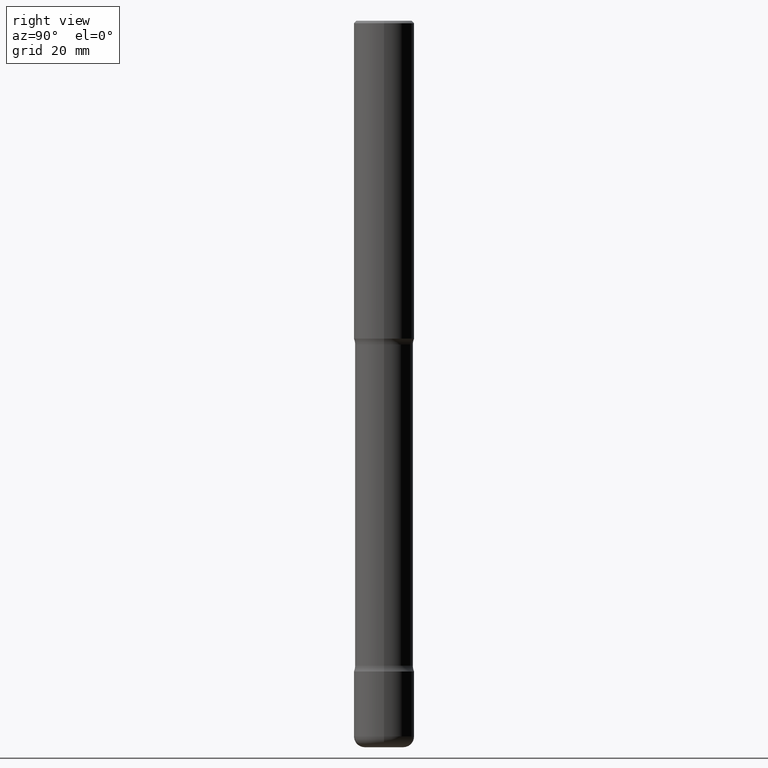
[diagram: clean part render]
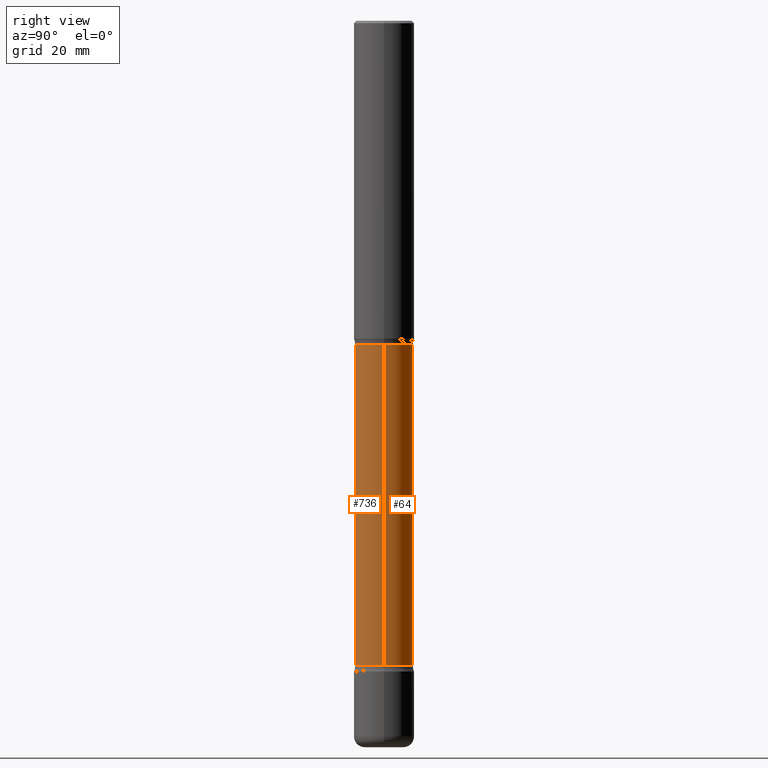
[diagram: same view with one multi-face feature highlighted, each face labeled with its STEP entity id]
A machine part, right view. The highlighted faces form ONE feature: a constant-radius fillet chain: 2 tangent blend faces with common blend radius 6.096 mm. The faces share edges in the B-rep.
Their STEP definitions:
[1] entity #736 (Cylinder):
#14 = CYLINDRICAL_SURFACE ( 'NONE', #95, 0.2399999999999999634 ) ;
#25 = FACE_OUTER_BOUND ( 'NONE', #288, .T. ) ;
#32 = CARTESIAN_POINT ( 'NONE',  ( 0.2399999999999996858, -1.101209651164026728E-14, -2.673989794855665014 ) ) ;
#57 = DIRECTION ( 'NONE',  ( 1.000000000000000000, -6.982962677686260400E-15, 0.000000000000000000 ) ) ;
#86 = CARTESIAN_POINT ( 'NONE',  ( -0.2399999999999996858, -7.509832289117167989E-15, -2.673989794855665014 ) ) ;
#94 = DIRECTION ( 'NONE',  ( 1.000000000000000000, -6.982962677686269077E-15, 0.000000000000000000 ) ) ;
#95 = AXIS2_PLACEMENT_3D ( 'NONE', #282, #272, #94 ) ;
#143 = LINE ( 'NONE', #392, #347 ) ;
#186 = CIRCLE ( 'NONE', #398, 0.2400000000000002687 ) ;
#200 = VERTEX_POINT ( 'NONE', #86 ) ;
#211 = CARTESIAN_POINT ( 'NONE',  ( -0.2400000000000002687, -1.694035901640351371E-14, -5.326010205144338094 ) ) ;
#270 = DIRECTION ( 'NONE',  ( -2.445468806185136597E-29, 3.491481338843145583E-15, 1.000000000000000000 ) ) ;
#272 = DIRECTION ( 'NONE',  ( -2.445468806185136597E-29, 3.491481338843145583E-15, 1.000000000000000000 ) ) ;
#277 = ORIENTED_EDGE ( 'NONE', *, *, #690, .F. ) ;
#282 = CARTESIAN_POINT ( 'NONE',  ( 6.419355616235984688E-29, -9.165138514463258190E-15, -2.625000000000000444 ) ) ;
#288 = EDGE_LOOP ( 'NONE', ( #389, #377, #709, #277 ) ) ;
#347 = VECTOR ( 'NONE', #570, 39.37007874015748143 ) ;
#358 = EDGE_CURVE ( 'NONE', #536, #797, #143, .T. ) ;
#377 = ORIENTED_EDGE ( 'NONE', *, *, #602, .T. ) ;
#389 = ORIENTED_EDGE ( 'NONE', *, *, #661, .F. ) ;
#392 = CARTESIAN_POINT ( 'NONE',  ( 0.2399999999999999634, -1.084104955710796315E-14, -2.625000000000000444 ) ) ;
#395 = DIRECTION ( 'NONE',  ( 1.000000000000000000, -6.982962677686269077E-15, 0.000000000000000000 ) ) ;
#398 = AXIS2_PLACEMENT_3D ( 'NONE', #739, #557, #57 ) ;
#421 = CIRCLE ( 'NONE', #511, 0.2399999999999996858 ) ;
#461 = CARTESIAN_POINT ( 'NONE',  ( 6.539158631376920910E-29, -9.336185468995565480E-15, -2.673989794855665014 ) ) ;
#511 = AXIS2_PLACEMENT_3D ( 'NONE', #461, #270, #395 ) ;
#536 = VERTEX_POINT ( 'NONE', #616 ) ;
#556 = VECTOR ( 'NONE', #580, 39.37007874015748143 ) ;
#557 = DIRECTION ( 'NONE',  ( -2.445468806185136597E-29, 3.491481338843145583E-15, 1.000000000000000000 ) ) ;
#570 = DIRECTION ( 'NONE',  ( -2.445468806185136877E-29, 3.491481338843145188E-15, 1.000000000000000000 ) ) ;
#580 = DIRECTION ( 'NONE',  ( -2.445468806185136877E-29, 3.491481338843145188E-15, 1.000000000000000000 ) ) ;
#602 = EDGE_CURVE ( 'NONE', #748, #536, #186, .T. ) ;
#616 = CARTESIAN_POINT ( 'NONE',  ( 0.2400000000000002687, -2.027157628439431676E-14, -5.326010205144338094 ) ) ;
#661 = EDGE_CURVE ( 'NONE', #748, #200, #772, .T. ) ;
#690 = EDGE_CURVE ( 'NONE', #200, #797, #421, .T. ) ;
#709 = ORIENTED_EDGE ( 'NONE', *, *, #358, .T. ) ;
#714 = CARTESIAN_POINT ( 'NONE',  ( -0.2399999999999999634, -7.459835948639019385E-15, -2.625000000000000444 ) ) ;
#736 = ADVANCED_FACE ( 'NONE', ( #25 ), #14, .T. ) ;
#739 = CARTESIAN_POINT ( 'NONE',  ( 1.302459181810417859E-28, -1.859566524174961022E-14, -5.326010205144338094 ) ) ;
#748 = VERTEX_POINT ( 'NONE', #211 ) ;
#772 = LINE ( 'NONE', #714, #556 ) ;
#797 = VERTEX_POINT ( 'NONE', #32 ) ;
[2] entity #64 (Cylinder):
#32 = CARTESIAN_POINT ( 'NONE',  ( 0.2399999999999996858, -1.101209651164026728E-14, -2.673989794855665014 ) ) ;
#42 = CYLINDRICAL_SURFACE ( 'NONE', #382, 0.2399999999999999634 ) ;
#64 = ADVANCED_FACE ( 'NONE', ( #621 ), #42, .T. ) ;
#68 = DIRECTION ( 'NONE',  ( 1.000000000000000000, -6.982962677686269077E-15, 0.000000000000000000 ) ) ;
#86 = CARTESIAN_POINT ( 'NONE',  ( -0.2399999999999996858, -7.509832289117167989E-15, -2.673989794855665014 ) ) ;
#89 = DIRECTION ( 'NONE',  ( 1.000000000000000000, -6.982962677686260400E-15, 0.000000000000000000 ) ) ;
#129 = DIRECTION ( 'NONE',  ( -2.445468806185136597E-29, 3.491481338843145583E-15, 1.000000000000000000 ) ) ;
#143 = LINE ( 'NONE', #392, #347 ) ;
#185 = EDGE_CURVE ( 'NONE', #536, #748, #754, .T. ) ;
#190 = EDGE_CURVE ( 'NONE', #797, #200, #767, .T. ) ;
#200 = VERTEX_POINT ( 'NONE', #86 ) ;
#211 = CARTESIAN_POINT ( 'NONE',  ( -0.2400000000000002687, -1.694035901640351371E-14, -5.326010205144338094 ) ) ;
#250 = EDGE_LOOP ( 'NONE', ( #312, #298, #695, #761 ) ) ;
#271 = CARTESIAN_POINT ( 'NONE',  ( 6.539158631376920910E-29, -9.336185468995565480E-15, -2.673989794855665014 ) ) ;
#283 = DIRECTION ( 'NONE',  ( -2.445468806185136597E-29, 3.491481338843145583E-15, 1.000000000000000000 ) ) ;
#298 = ORIENTED_EDGE ( 'NONE', *, *, #661, .T. ) ;
#312 = ORIENTED_EDGE ( 'NONE', *, *, #185, .T. ) ;
#330 = DIRECTION ( 'NONE',  ( 1.000000000000000000, -6.982962677686269077E-15, 0.000000000000000000 ) ) ;
#347 = VECTOR ( 'NONE', #570, 39.37007874015748143 ) ;
#358 = EDGE_CURVE ( 'NONE', #536, #797, #143, .T. ) ;
#382 = AXIS2_PLACEMENT_3D ( 'NONE', #683, #129, #68 ) ;
#392 = CARTESIAN_POINT ( 'NONE',  ( 0.2399999999999999634, -1.084104955710796315E-14, -2.625000000000000444 ) ) ;
#509 = AXIS2_PLACEMENT_3D ( 'NONE', #697, #649, #89 ) ;
#536 = VERTEX_POINT ( 'NONE', #616 ) ;
#556 = VECTOR ( 'NONE', #580, 39.37007874015748143 ) ;
#570 = DIRECTION ( 'NONE',  ( -2.445468806185136877E-29, 3.491481338843145188E-15, 1.000000000000000000 ) ) ;
#580 = DIRECTION ( 'NONE',  ( -2.445468806185136877E-29, 3.491481338843145188E-15, 1.000000000000000000 ) ) ;
#612 = AXIS2_PLACEMENT_3D ( 'NONE', #271, #283, #330 ) ;
#616 = CARTESIAN_POINT ( 'NONE',  ( 0.2400000000000002687, -2.027157628439431676E-14, -5.326010205144338094 ) ) ;
#621 = FACE_OUTER_BOUND ( 'NONE', #250, .T. ) ;
#649 = DIRECTION ( 'NONE',  ( -2.445468806185136597E-29, 3.491481338843145583E-15, 1.000000000000000000 ) ) ;
#661 = EDGE_CURVE ( 'NONE', #748, #200, #772, .T. ) ;
#683 = CARTESIAN_POINT ( 'NONE',  ( 6.419355616235984688E-29, -9.165138514463258190E-15, -2.625000000000000444 ) ) ;
#695 = ORIENTED_EDGE ( 'NONE', *, *, #190, .F. ) ;
#697 = CARTESIAN_POINT ( 'NONE',  ( 1.302459181810417859E-28, -1.859566524174961022E-14, -5.326010205144338094 ) ) ;
#714 = CARTESIAN_POINT ( 'NONE',  ( -0.2399999999999999634, -7.459835948639019385E-15, -2.625000000000000444 ) ) ;
#748 = VERTEX_POINT ( 'NONE', #211 ) ;
#754 = CIRCLE ( 'NONE', #509, 0.2400000000000002687 ) ;
#761 = ORIENTED_EDGE ( 'NONE', *, *, #358, .F. ) ;
#767 = CIRCLE ( 'NONE', #612, 0.2399999999999996858 ) ;
#772 = LINE ( 'NONE', #714, #556 ) ;
#797 = VERTEX_POINT ( 'NONE', #32 ) ;